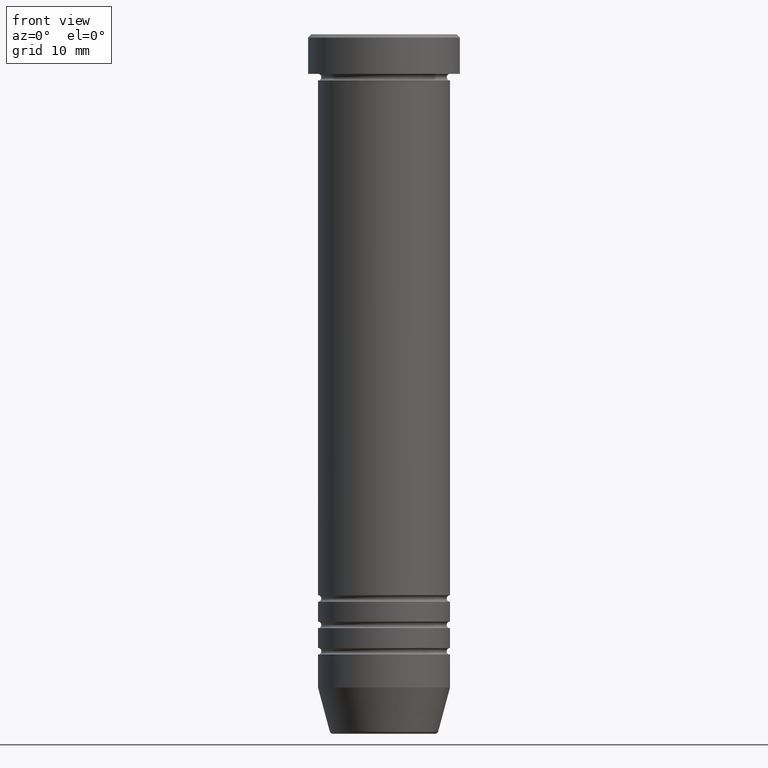
[diagram: clean part render]
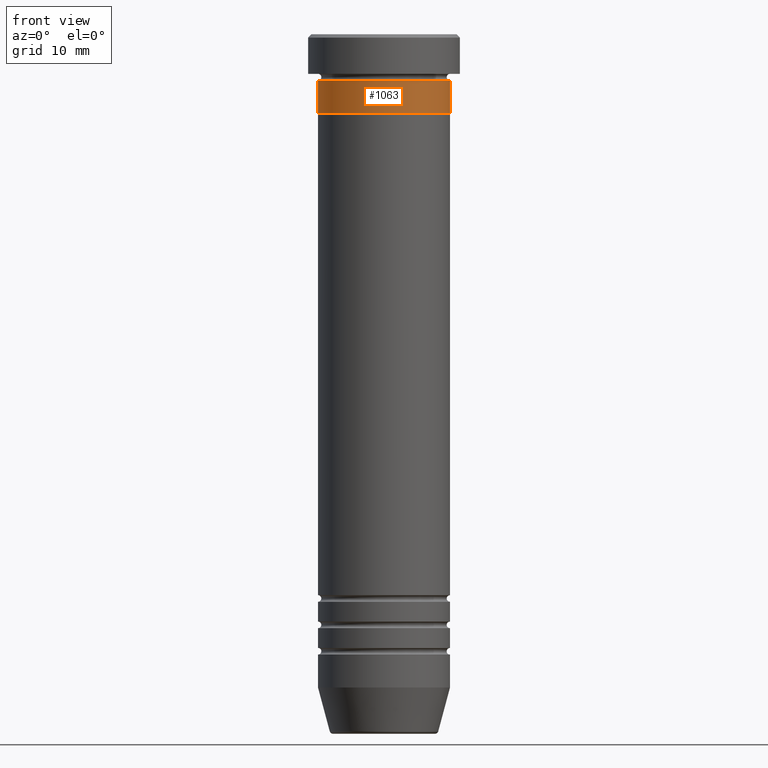
[diagram: same view with one face highlighted and labeled with its STEP entity id]
A machine part, front view. The second image highlights one B-rep face of the part: STEP entity #1063.
In plain terms, the highlighted cylindrical surface (partial cylindrical patch) has radius 10 mm, axis along (-0, -0, 1).
Its self-contained STEP definition (entity closure, byte-faithful):
#47 = VECTOR ( 'NONE', #702, 1000.000000000000000 ) ;
#91 = ORIENTED_EDGE ( 'NONE', *, *, #832, .F. ) ;
#121 = ORIENTED_EDGE ( 'NONE', *, *, #651, .F. ) ;
#176 = DIRECTION ( 'NONE',  ( 1.000000000000000000, 0.000000000000000000, 0.000000000000000000 ) ) ;
#188 = EDGE_CURVE ( 'NONE', #369, #266, #746, .T. ) ;
#203 = CARTESIAN_POINT ( 'NONE',  ( 0.000000000000000000, 0.000000000000000000, 0.000000000000000000 ) ) ;
#266 = VERTEX_POINT ( 'NONE', #864 ) ;
#308 = VECTOR ( 'NONE', #314, 1000.000000000000000 ) ;
#314 = DIRECTION ( 'NONE',  ( -0.000000000000000000, -0.000000000000000000, 1.000000000000000000 ) ) ;
#331 = CARTESIAN_POINT ( 'NONE',  ( 0.000000000000000000, 0.000000000000000000, -6.999999999999999112 ) ) ;
#349 = CIRCLE ( 'NONE', #550, 10.00000000000000000 ) ;
#369 = VERTEX_POINT ( 'NONE', #889 ) ;
#415 = DIRECTION ( 'NONE',  ( 1.000000000000000000, 0.000000000000000000, 0.000000000000000000 ) ) ;
#507 = DIRECTION ( 'NONE',  ( -0.000000000000000000, -0.000000000000000000, 1.000000000000000000 ) ) ;
#550 = AXIS2_PLACEMENT_3D ( 'NONE', #725, #975, #176 ) ;
#557 = DIRECTION ( 'NONE',  ( -0.000000000000000000, -0.000000000000000000, 1.000000000000000000 ) ) ;
#586 = ORIENTED_EDGE ( 'NONE', *, *, #1069, .T. ) ;
#613 = CARTESIAN_POINT ( 'NONE',  ( -10.00000000000000000, 1.224646799147353256E-15, 0.000000000000000000 ) ) ;
#634 = FACE_OUTER_BOUND ( 'NONE', #912, .T. ) ;
#651 = EDGE_CURVE ( 'NONE', #1023, #266, #899, .T. ) ;
#684 = CARTESIAN_POINT ( 'NONE',  ( -10.00000000000000000, 1.224646799147353256E-15, -6.999999999999999112 ) ) ;
#702 = DIRECTION ( 'NONE',  ( -0.000000000000000000, -0.000000000000000000, 1.000000000000000000 ) ) ;
#725 = CARTESIAN_POINT ( 'NONE',  ( 0.000000000000000000, 0.000000000000000000, -12.00000000000000000 ) ) ;
#746 = LINE ( 'NONE', #1021, #308 ) ;
#787 = LINE ( 'NONE', #613, #47 ) ;
#832 = EDGE_CURVE ( 'NONE', #981, #1023, #787, .T. ) ;
#864 = CARTESIAN_POINT ( 'NONE',  ( 10.00000000000000000, 0.000000000000000000, -6.999999999999999112 ) ) ;
#889 = CARTESIAN_POINT ( 'NONE',  ( 10.00000000000000000, 0.000000000000000000, -12.00000000000000000 ) ) ;
#894 = DIRECTION ( 'NONE',  ( 1.000000000000000000, 0.000000000000000000, 0.000000000000000000 ) ) ;
#899 = CIRCLE ( 'NONE', #1088, 10.00000000000000000 ) ;
#912 = EDGE_LOOP ( 'NONE', ( #91, #586, #1076, #121 ) ) ;
#975 = DIRECTION ( 'NONE',  ( -0.000000000000000000, -0.000000000000000000, 1.000000000000000000 ) ) ;
#981 = VERTEX_POINT ( 'NONE', #1050 ) ;
#1001 = CYLINDRICAL_SURFACE ( 'NONE', #1077, 10.00000000000000000 ) ;
#1021 = CARTESIAN_POINT ( 'NONE',  ( 10.00000000000000000, 0.000000000000000000, 0.000000000000000000 ) ) ;
#1023 = VERTEX_POINT ( 'NONE', #684 ) ;
#1050 = CARTESIAN_POINT ( 'NONE',  ( -10.00000000000000000, 1.224646799147353256E-15, -12.00000000000000000 ) ) ;
#1063 = ADVANCED_FACE ( 'NONE', ( #634 ), #1001, .T. ) ;
#1069 = EDGE_CURVE ( 'NONE', #981, #369, #349, .T. ) ;
#1076 = ORIENTED_EDGE ( 'NONE', *, *, #188, .T. ) ;
#1077 = AXIS2_PLACEMENT_3D ( 'NONE', #203, #557, #894 ) ;
#1088 = AXIS2_PLACEMENT_3D ( 'NONE', #331, #507, #415 ) ;